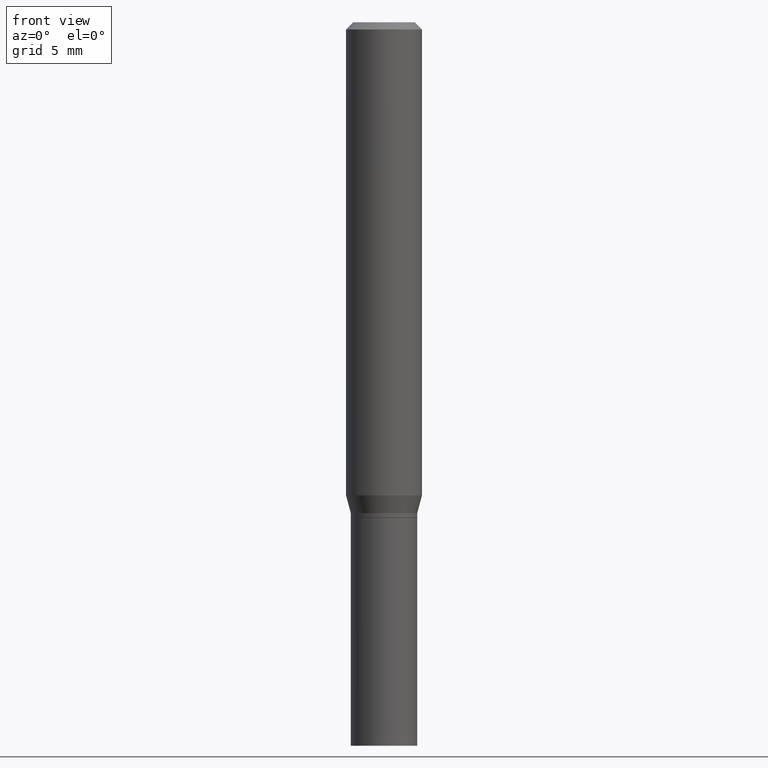
[diagram: clean part render]
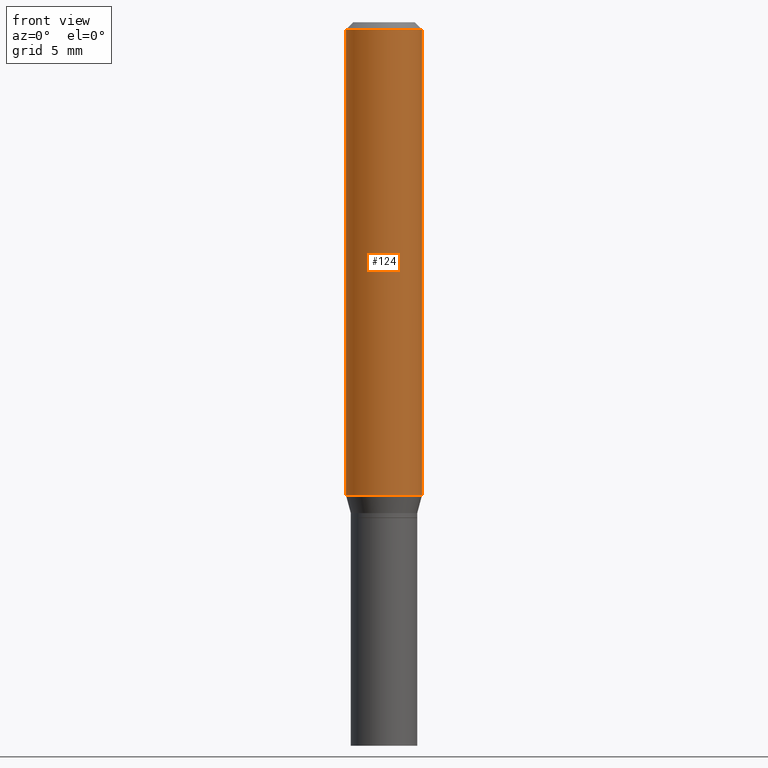
[diagram: same view with one face highlighted and labeled with its STEP entity id]
A machine part, front view. The second image highlights one B-rep face of the part: STEP entity #124.
In plain terms, the highlighted cylindrical surface (partial cylindrical patch) has radius 2.0003 mm, axis along (-0, 0, 1).
Its self-contained STEP definition (entity closure, byte-faithful):
#4 = DIRECTION ( 'NONE',  ( 1.000000000000000000, -6.982962677686265922E-15, 0.000000000000000000 ) ) ;
#23 = CARTESIAN_POINT ( 'NONE',  ( -0.07875000000000001443, 5.595524044110789989E-16, -3.873661383575739193E-30 ) ) ;
#44 = AXIS2_PLACEMENT_3D ( 'NONE', #277, #204, #288 ) ;
#45 = CARTESIAN_POINT ( 'NONE',  ( 3.668203209277705088E-31, -5.237222008264718399E-17, -0.01499999999999999944 ) ) ;
#50 = AXIS2_PLACEMENT_3D ( 'NONE', #385, #84, #167 ) ;
#84 = DIRECTION ( 'NONE',  ( -2.445468806185136597E-29, 3.491481338843145583E-15, 1.000000000000000000 ) ) ;
#89 = EDGE_CURVE ( 'NONE', #284, #406, #454, .T. ) ;
#92 = DIRECTION ( 'NONE',  ( -2.445468806185136877E-29, 3.491481338843145188E-15, 1.000000000000000000 ) ) ;
#97 = EDGE_LOOP ( 'NONE', ( #133, #116, #355, #136 ) ) ;
#116 = ORIENTED_EDGE ( 'NONE', *, *, #206, .T. ) ;
#119 = CARTESIAN_POINT ( 'NONE',  ( 0.07875000000000001443, -3.974490421634703940E-15, -0.9808392995454470187 ) ) ;
#124 = ADVANCED_FACE ( 'NONE', ( #198 ), #163, .T. ) ;
#126 = CARTESIAN_POINT ( 'NONE',  ( 0.07875000000000001443, -5.499083108677936415E-16, 3.839989210939299717E-30 ) ) ;
#133 = ORIENTED_EDGE ( 'NONE', *, *, #89, .F. ) ;
#136 = ORIENTED_EDGE ( 'NONE', *, *, #383, .F. ) ;
#150 = CARTESIAN_POINT ( 'NONE',  ( -0.07875000000000000056, -1.178924761013699443E-15, -0.01499999999999999944 ) ) ;
#157 = DIRECTION ( 'NONE',  ( -2.445468806185136877E-29, 3.491481338843145188E-15, 1.000000000000000000 ) ) ;
#163 = CYLINDRICAL_SURFACE ( 'NONE', #50, 0.07875000000000001443 ) ;
#167 = DIRECTION ( 'NONE',  ( 1.000000000000000000, -6.982962677686267499E-15, 4.876176775795935232E-29 ) ) ;
#190 = DIRECTION ( 'NONE',  ( -2.445468806185136597E-29, 3.491481338843145583E-15, 1.000000000000000000 ) ) ;
#192 = CIRCLE ( 'NONE', #440, 0.07875000000000000056 ) ;
#198 = FACE_OUTER_BOUND ( 'NONE', #97, .T. ) ;
#204 = DIRECTION ( 'NONE',  ( -2.445468806185136597E-29, 3.491481338843145583E-15, 1.000000000000000000 ) ) ;
#206 = EDGE_CURVE ( 'NONE', #284, #436, #378, .T. ) ;
#243 = VECTOR ( 'NONE', #92, 39.37007874015748143 ) ;
#277 = CARTESIAN_POINT ( 'NONE',  ( 2.398611910918870150E-29, -3.424582110766910594E-15, -0.9808392995454470187 ) ) ;
#284 = VERTEX_POINT ( 'NONE', #374 ) ;
#288 = DIRECTION ( 'NONE',  ( 1.000000000000000000, -6.982962677686267499E-15, 0.000000000000000000 ) ) ;
#342 = LINE ( 'NONE', #126, #420 ) ;
#355 = ORIENTED_EDGE ( 'NONE', *, *, #442, .T. ) ;
#363 = VERTEX_POINT ( 'NONE', #409 ) ;
#374 = CARTESIAN_POINT ( 'NONE',  ( -0.07875000000000001443, -2.865029706355831792E-15, -0.9808392995454470187 ) ) ;
#378 = CIRCLE ( 'NONE', #44, 0.07875000000000001443 ) ;
#383 = EDGE_CURVE ( 'NONE', #406, #363, #192, .T. ) ;
#385 = CARTESIAN_POINT ( 'NONE',  ( 0.000000000000000000, 0.000000000000000000, 0.000000000000000000 ) ) ;
#406 = VERTEX_POINT ( 'NONE', #150 ) ;
#409 = CARTESIAN_POINT ( 'NONE',  ( 0.07875000000000000056, -6.022805309504406221E-16, -0.01499999999999999944 ) ) ;
#420 = VECTOR ( 'NONE', #157, 39.37007874015748143 ) ;
#436 = VERTEX_POINT ( 'NONE', #119 ) ;
#440 = AXIS2_PLACEMENT_3D ( 'NONE', #45, #190, #4 ) ;
#442 = EDGE_CURVE ( 'NONE', #436, #363, #342, .T. ) ;
#454 = LINE ( 'NONE', #23, #243 ) ;